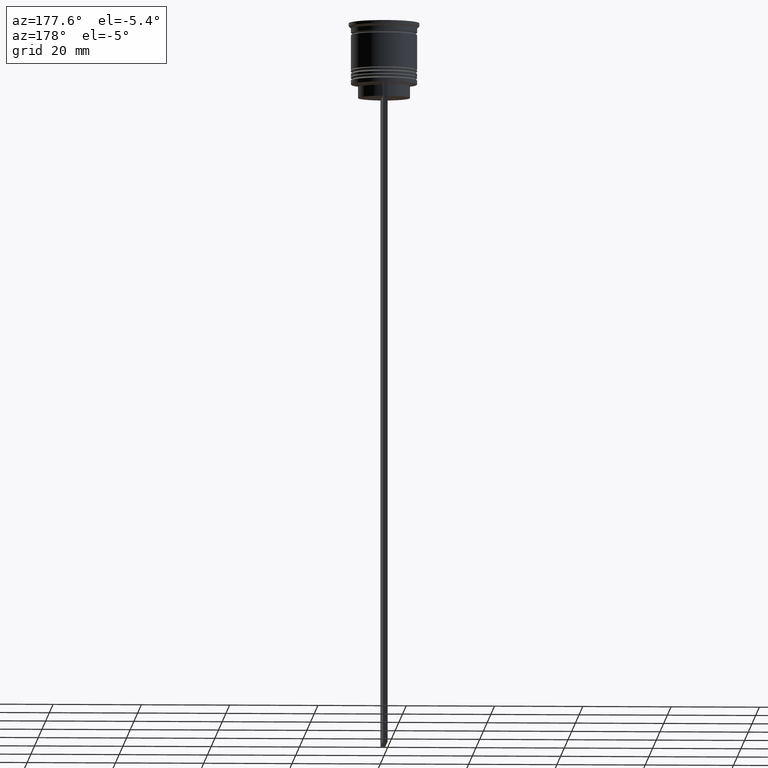
[diagram: clean part render]
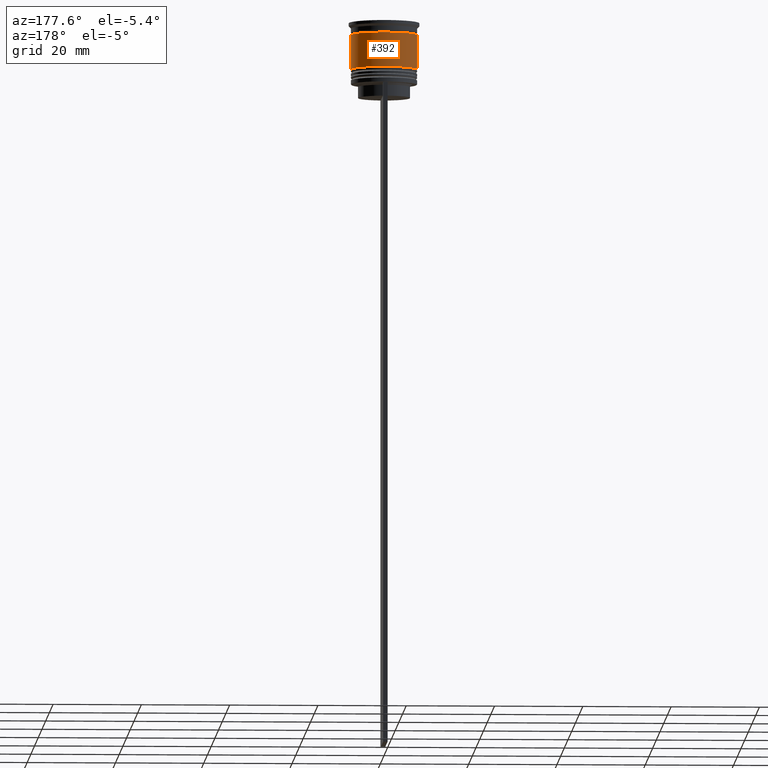
[diagram: same view with one face highlighted and labeled with its STEP entity id]
A machine part, auxiliary view. The second image highlights one B-rep face of the part: STEP entity #392.
In plain terms, the highlighted cylindrical surface (edge-blend (fillet) strip) has radius 7.5 mm, axis along (-0, -0, 1).
Its self-contained STEP definition (entity closure, byte-faithful):
#13 = VERTEX_POINT ( 'NONE', #1228 ) ;
#53 = AXIS2_PLACEMENT_3D ( 'NONE', #467, #1036, #1999 ) ;
#179 = CARTESIAN_POINT ( 'NONE',  ( 0.000000000000000000, 0.000000000000000000, -2.700000000000001510 ) ) ;
#302 = CARTESIAN_POINT ( 'NONE',  ( -7.499999999999998224, 9.184850993605145972E-16, -2.700000000000001510 ) ) ;
#327 = DIRECTION ( 'NONE',  ( -0.000000000000000000, -0.000000000000000000, 1.000000000000000000 ) ) ;
#392 = ADVANCED_FACE ( 'NONE', ( #2050 ), #1717, .T. ) ;
#396 = DIRECTION ( 'NONE',  ( 1.000000000000000000, 0.000000000000000000, 0.000000000000000000 ) ) ;
#467 = CARTESIAN_POINT ( 'NONE',  ( 0.000000000000000000, 0.000000000000000000, -10.50000000000000000 ) ) ;
#647 = VERTEX_POINT ( 'NONE', #1625 ) ;
#755 = CIRCLE ( 'NONE', #53, 7.500000000000001776 ) ;
#767 = CARTESIAN_POINT ( 'NONE',  ( 0.000000000000000000, 0.000000000000000000, 0.000000000000000000 ) ) ;
#830 = VERTEX_POINT ( 'NONE', #2289 ) ;
#1002 = EDGE_CURVE ( 'NONE', #647, #2489, #1636, .T. ) ;
#1036 = DIRECTION ( 'NONE',  ( -0.000000000000000000, -0.000000000000000000, 1.000000000000000000 ) ) ;
#1165 = DIRECTION ( 'NONE',  ( -0.000000000000000000, -0.000000000000000000, 1.000000000000000000 ) ) ;
#1181 = VECTOR ( 'NONE', #2345, 1000.000000000000000 ) ;
#1228 = CARTESIAN_POINT ( 'NONE',  ( 7.500000000000001776, 0.000000000000000000, -10.50000000000000000 ) ) ;
#1252 = CARTESIAN_POINT ( 'NONE',  ( -7.500000000000000000, 9.184850993605147944E-16, 0.000000000000000000 ) ) ;
#1339 = ORIENTED_EDGE ( 'NONE', *, *, #1896, .F. ) ;
#1361 = DIRECTION ( 'NONE',  ( -0.000000000000000000, -0.000000000000000000, 1.000000000000000000 ) ) ;
#1428 = VECTOR ( 'NONE', #1165, 1000.000000000000000 ) ;
#1433 = AXIS2_PLACEMENT_3D ( 'NONE', #179, #1361, #396 ) ;
#1490 = EDGE_CURVE ( 'NONE', #13, #830, #1572, .T. ) ;
#1572 = LINE ( 'NONE', #2291, #1428 ) ;
#1625 = CARTESIAN_POINT ( 'NONE',  ( -7.500000000000001776, 9.184850993605149917E-16, -10.50000000000000000 ) ) ;
#1636 = LINE ( 'NONE', #1252, #1181 ) ;
#1672 = CIRCLE ( 'NONE', #1433, 7.499999999999998224 ) ;
#1717 = CYLINDRICAL_SURFACE ( 'NONE', #2457, 7.500000000000000000 ) ;
#1896 = EDGE_CURVE ( 'NONE', #830, #2489, #1672, .T. ) ;
#1991 = EDGE_CURVE ( 'NONE', #13, #647, #755, .T. ) ;
#1999 = DIRECTION ( 'NONE',  ( 1.000000000000000000, 0.000000000000000000, 0.000000000000000000 ) ) ;
#2050 = FACE_OUTER_BOUND ( 'NONE', #2189, .T. ) ;
#2183 = ORIENTED_EDGE ( 'NONE', *, *, #1490, .F. ) ;
#2189 = EDGE_LOOP ( 'NONE', ( #2353, #2328, #1339, #2183 ) ) ;
#2289 = CARTESIAN_POINT ( 'NONE',  ( 7.499999999999998224, 0.000000000000000000, -2.700000000000001510 ) ) ;
#2290 = DIRECTION ( 'NONE',  ( 1.000000000000000000, 0.000000000000000000, 0.000000000000000000 ) ) ;
#2291 = CARTESIAN_POINT ( 'NONE',  ( 7.500000000000000000, 0.000000000000000000, 0.000000000000000000 ) ) ;
#2328 = ORIENTED_EDGE ( 'NONE', *, *, #1002, .T. ) ;
#2345 = DIRECTION ( 'NONE',  ( -0.000000000000000000, -0.000000000000000000, 1.000000000000000000 ) ) ;
#2353 = ORIENTED_EDGE ( 'NONE', *, *, #1991, .T. ) ;
#2457 = AXIS2_PLACEMENT_3D ( 'NONE', #767, #327, #2290 ) ;
#2489 = VERTEX_POINT ( 'NONE', #302 ) ;